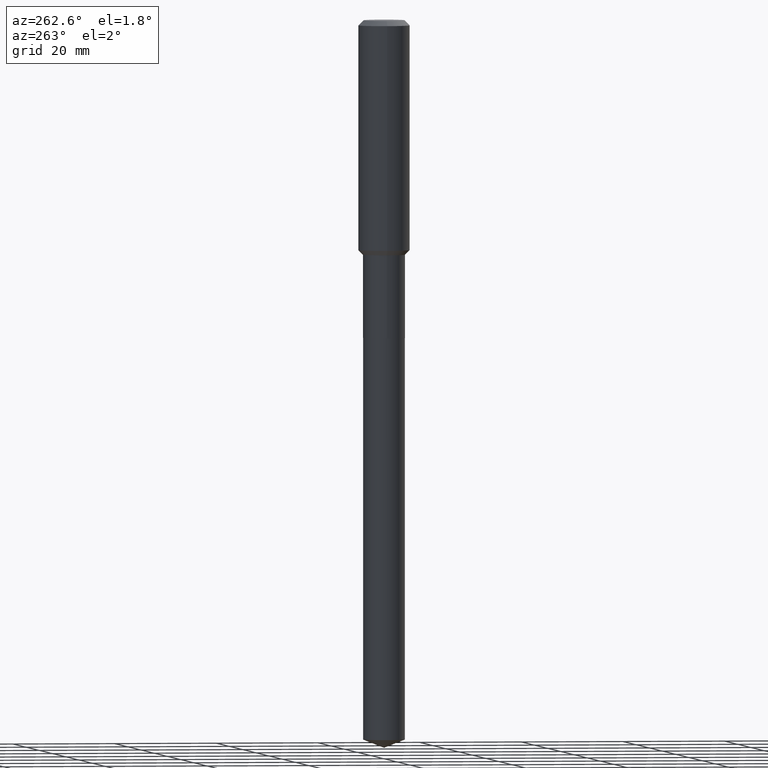
[diagram: clean part render]
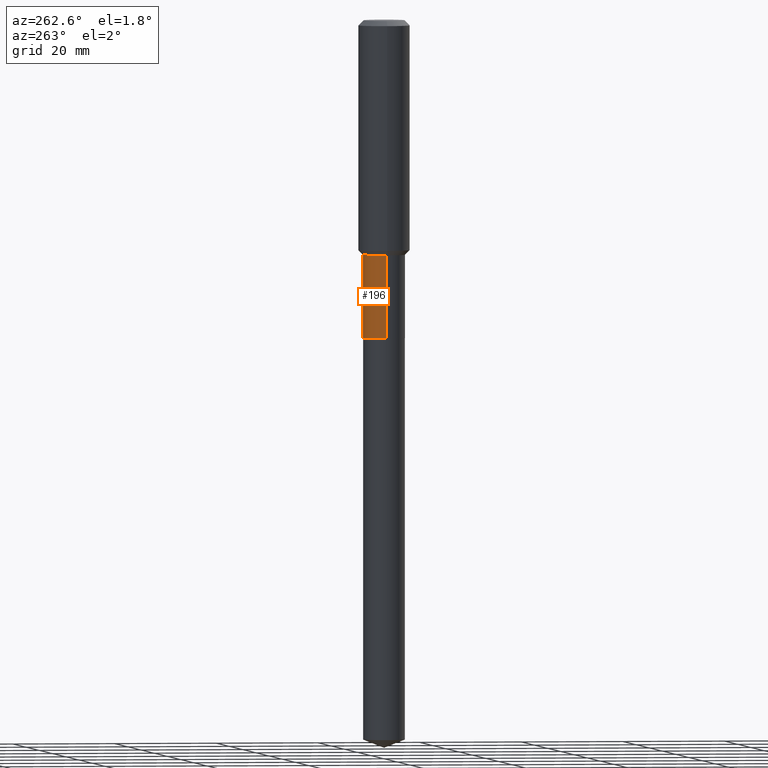
[diagram: same view with one face highlighted and labeled with its STEP entity id]
A machine part, auxiliary view. The second image highlights one B-rep face of the part: STEP entity #196.
In plain terms, the highlighted cylindrical surface (edge-blend (fillet) strip) has radius 4.0996 mm, axis along (-0, 0, 1).
Its self-contained STEP definition (entity closure, byte-faithful):
#40 = DIRECTION ( 'NONE',  ( -2.445468806185136597E-29, 3.491481338843145583E-15, 1.000000000000000000 ) ) ;
#45 = CARTESIAN_POINT ( 'NONE',  ( -0.1614000000000000157, -6.259139666370332882E-15, -2.440399999999999014 ) ) ;
#70 = CARTESIAN_POINT ( 'NONE',  ( 0.1614000000000000157, -9.647661235491372820E-15, -2.440399999999999014 ) ) ;
#92 = CIRCLE ( 'NONE', #365, 0.1614000000000000157 ) ;
#105 = CYLINDRICAL_SURFACE ( 'NONE', #462, 0.1613999999999999602 ) ;
#122 = CARTESIAN_POINT ( 'NONE',  ( 0.1613999999999999047, -7.418350400640025199E-15, -1.801899999999999169 ) ) ;
#157 = EDGE_CURVE ( 'NONE', #251, #265, #92, .T. ) ;
#196 = ADVANCED_FACE ( 'NONE', ( #322 ), #105, .T. ) ;
#201 = CARTESIAN_POINT ( 'NONE',  ( -0.1613999999999999602, 1.146815975516801417E-15, -7.939161235671416085E-30 ) ) ;
#223 = CARTESIAN_POINT ( 'NONE',  ( 0.000000000000000000, 0.000000000000000000, 0.000000000000000000 ) ) ;
#236 = LINE ( 'NONE', #201, #486 ) ;
#239 = AXIS2_PLACEMENT_3D ( 'NONE', #378, #40, #416 ) ;
#251 = VERTEX_POINT ( 'NONE', #70 ) ;
#256 = DIRECTION ( 'NONE',  ( 1.000000000000000000, -6.982962677686265133E-15, 0.000000000000000000 ) ) ;
#262 = DIRECTION ( 'NONE',  ( -2.445468806185136597E-29, 3.491481338843145583E-15, 1.000000000000000000 ) ) ;
#263 = ORIENTED_EDGE ( 'NONE', *, *, #369, .T. ) ;
#265 = VERTEX_POINT ( 'NONE', #45 ) ;
#272 = ORIENTED_EDGE ( 'NONE', *, *, #399, .F. ) ;
#278 = VERTEX_POINT ( 'NONE', #421 ) ;
#279 = CARTESIAN_POINT ( 'NONE',  ( 0.1613999999999999602, -1.127050176178562936E-15, 7.870149316134637915E-30 ) ) ;
#290 = CARTESIAN_POINT ( 'NONE',  ( 5.967922074614205116E-29, -8.520611059312809095E-15, -2.440399999999999014 ) ) ;
#322 = FACE_OUTER_BOUND ( 'NONE', #417, .T. ) ;
#326 = CIRCLE ( 'NONE', #239, 0.1613999999999999047 ) ;
#330 = VERTEX_POINT ( 'NONE', #122 ) ;
#344 = LINE ( 'NONE', #279, #348 ) ;
#348 = VECTOR ( 'NONE', #431, 39.37007874015748143 ) ;
#365 = AXIS2_PLACEMENT_3D ( 'NONE', #290, #262, #256 ) ;
#369 = EDGE_CURVE ( 'NONE', #265, #278, #236, .T. ) ;
#378 = CARTESIAN_POINT ( 'NONE',  ( 4.406490241864995269E-29, -6.291300224461461475E-15, -1.801899999999999169 ) ) ;
#380 = DIRECTION ( 'NONE',  ( -2.445468806185136877E-29, 3.491481338843145188E-15, 1.000000000000000000 ) ) ;
#389 = ORIENTED_EDGE ( 'NONE', *, *, #460, .F. ) ;
#399 = EDGE_CURVE ( 'NONE', #330, #278, #326, .T. ) ;
#408 = DIRECTION ( 'NONE',  ( 1.000000000000000000, -6.982962677686265133E-15, 4.876176775795935232E-29 ) ) ;
#416 = DIRECTION ( 'NONE',  ( 1.000000000000000000, -6.982962677686269866E-15, 0.000000000000000000 ) ) ;
#417 = EDGE_LOOP ( 'NONE', ( #430, #263, #272, #389 ) ) ;
#421 = CARTESIAN_POINT ( 'NONE',  ( -0.1613999999999999047, -6.259139666370333671E-15, -1.801899999999999169 ) ) ;
#430 = ORIENTED_EDGE ( 'NONE', *, *, #157, .T. ) ;
#431 = DIRECTION ( 'NONE',  ( -2.445468806185136877E-29, 3.491481338843145188E-15, 1.000000000000000000 ) ) ;
#460 = EDGE_CURVE ( 'NONE', #251, #330, #344, .T. ) ;
#462 = AXIS2_PLACEMENT_3D ( 'NONE', #223, #476, #408 ) ;
#476 = DIRECTION ( 'NONE',  ( -2.445468806185136597E-29, 3.491481338843145583E-15, 1.000000000000000000 ) ) ;
#486 = VECTOR ( 'NONE', #380, 39.37007874015748143 ) ;